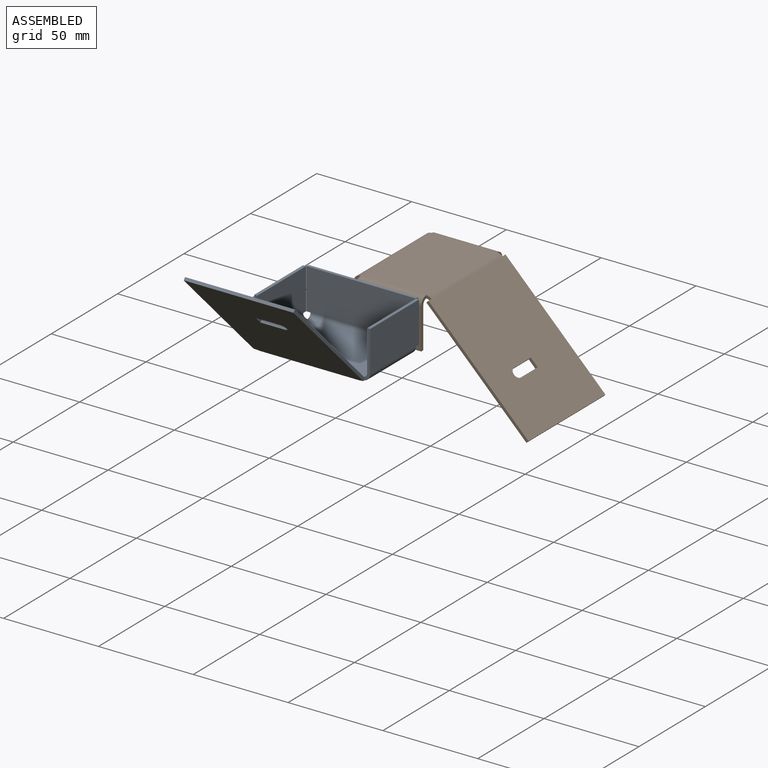
[diagram: assembled view]
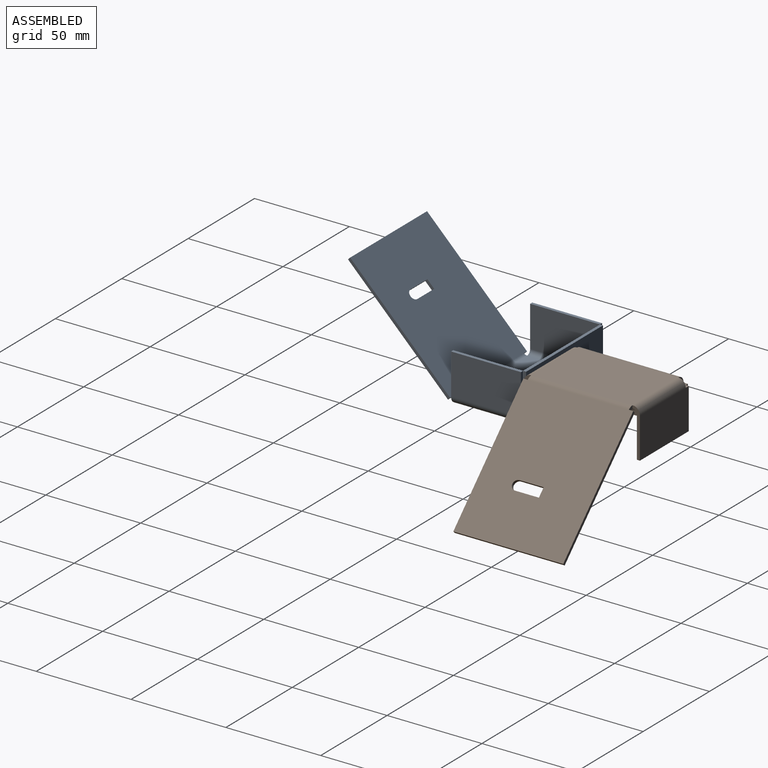
[diagram: assembled view, second angle]
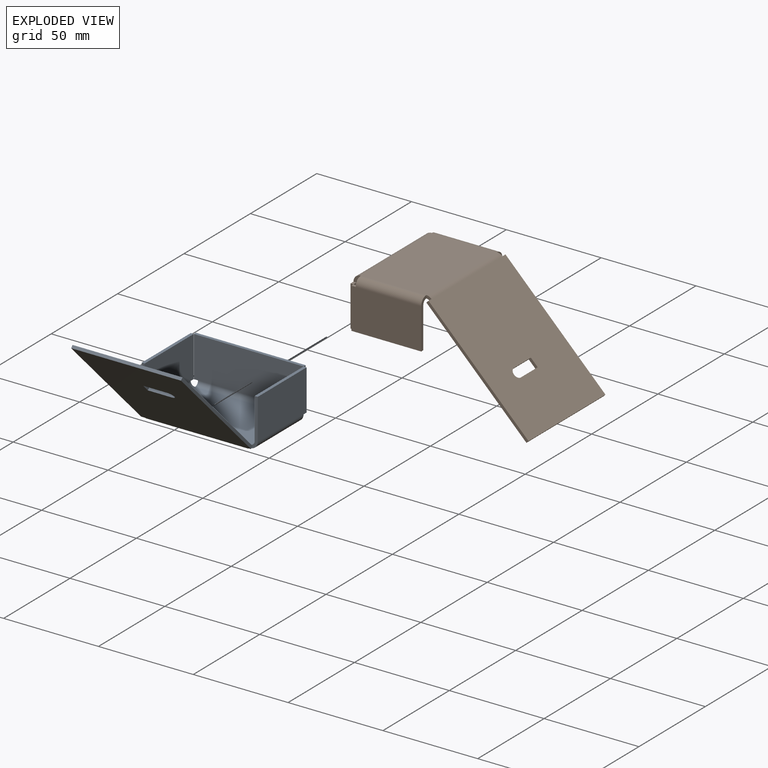
[diagram: exploded view]
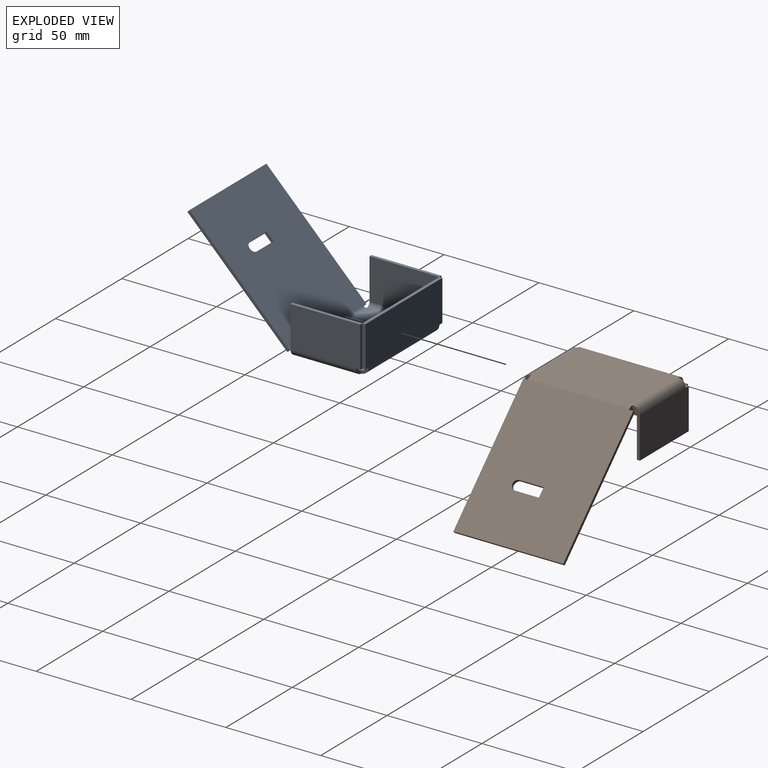
[diagram: exploded view, second angle]
ASSEMBLY  parts=2 mates=3
PART A: 48 faces, bbox 61.1x93.9x55 mm
  f0: plane 53.39x34.57mm, normal (0,0,-1), area 1845.4mm2, adj f15,f26,f36,f46
  f1: plane 53.39x34.57mm, normal (0,0,1), area 1845.4mm2, adj f16,f27,f37,f47
  f2: plane 2.29x1.12mm, normal (0,0.71,-0.71), area 3.6mm2, adj f7,f11,f12,f13
  f3: plane 12.7x1.12mm, normal (0,-0.71,0.71), area 20.2mm2, adj f4,f10,f11,f12
  f4: plane 4.71x4.71mm, normal (1,0,0), area 8.1mm2, adj f3,f5,f11,f12
  f5: plane 12.7x1.12mm, normal (0,0.71,-0.71), area 20.2mm2, adj f4,f10,f11,f12
  f6: plane 57.96x1.12mm, normal (0,-0.71,0.71), area 92mm2, adj f7,f9,f11,f12
  f7: plane 53.87x53.87mm, normal (-1,0,0), area 118.4mm2, adj f2,f6,f11,f12
  f8: plane 2.29x1.12mm, normal (0,0.71,-0.71), area 3.6mm2, adj f9,f11,f12,f14
  f9: plane 53.87x53.87mm, normal (1,0,0), area 118.4mm2, adj f6,f8,f11,f12
  f10: cylinder r=2.54mm len=4.71mm, axis (0,-0.71,-0.71), area 12.7mm2, adj f3,f5,f11,f12
  f11: plane 57.96x52.75mm, normal (0,-0.71,-0.71), area 4248.7mm2, adj f2,f3,f4,f5,f6,f7,f8,f9
  f12: plane 57.96x52.75mm, normal (0,0.71,0.71), area 4248.7mm2, adj f2,f3,f4,f5,f6,f7,f8,f9
  f13: plane 2.74x2.26mm, normal (-1,0,0), area 3.8mm2, adj f2,f15,f16,f35
  f14: plane 2.74x2.26mm, normal (1,0,0), area 3.8mm2, adj f8,f15,f16,f44
  f15: cylinder r=3.87mm len=53.39mm, axis (-1,0,0), area 162.4mm2, adj f0,f11,f13,f14
  f16: cylinder r=2.29mm len=53.39mm, axis (-1,0,0), area 95.8mm2, adj f1,f12,f13,f14
  f17: plane 2.26x1.59mm, normal (0,0,-1), area 3.6mm2, adj f18,f22,f23,f24
  f18: plane 21.53x1.59mm, normal (1,0,0), area 34.2mm2, adj f17,f21,f22,f23
  f19: plane 2.26x1.59mm, normal (0,0,-1), area 3.6mm2, adj f20,f22,f23,f25
  f20: plane 21.53x1.59mm, normal (-1,0,0), area 34.2mm2, adj f19,f21,f22,f23
  f21: plane 57.91x1.59mm, normal (0,0,1), area 91.9mm2, adj f18,f20,f22,f23
  f22: plane 57.91x21.53mm, normal (0,1,0), area 1246.5mm2, adj f17,f18,f19,f20,f21,f26
  f23: plane 57.91x21.53mm, normal (0,-1,0), area 1246.5mm2, adj f17,f18,f19,f20,f21,f27
  f24: plane 3.87x3.87mm, normal (1,0,0), area 7.7mm2, adj f17,f26,f27,f45
  f25: plane 3.87x3.87mm, normal (-1,0,0), area 7.7mm2, adj f19,f26,f27,f34
  f26: cylinder r=3.87mm len=53.39mm, axis (1,0,0), area 324.8mm2, adj f0,f22,f24,f25
  f27: cylinder r=2.29mm len=53.39mm, axis (1,0,0), area 191.7mm2, adj f1,f23,f24,f25
  f28: plane 2.26x1.59mm, normal (0,0,-1), area 3.6mm2, adj f29,f32,f33,f34
  f29: plane 21.53x1.59mm, normal (0,1,0), area 34.2mm2, adj f28,f31,f32,f33
  f30: plane 21.53x1.59mm, normal (0,-1,0), area 34.2mm2, adj f31,f32,f33,f35
  f31: plane 36.83x1.59mm, normal (0,0,1), area 58.5mm2, adj f29,f30,f32,f33
  f32: plane 36.83x21.53mm, normal (-1,0,0), area 792.8mm2, adj f28,f29,f30,f31,f36
  f33: plane 36.83x21.53mm, normal (1,0,0), area 792.8mm2, adj f28,f29,f30,f31,f37
  f34: plane 3.87x3.87mm, normal (0,1,0), area 7.7mm2, adj f25,f28,f36,f37
  f35: plane 3.87x3.87mm, normal (0,-1,0), area 7.7mm2, adj f13,f30,f36,f37
  f36: cylinder r=3.87mm len=34.57mm, axis (0,1,0), area 210.3mm2, adj f0,f32,f34,f35
  f37: cylinder r=2.29mm len=34.57mm, axis (0,1,0), area 124.1mm2, adj f1,f33,f34,f35
  f38: plane 21.53x1.59mm, normal (0,-1,0), area 34.2mm2, adj f41,f42,f43,f44
  f39: plane 2.26x1.59mm, normal (0,0,-1), area 3.6mm2, adj f40,f42,f43,f45
  f40: plane 21.53x1.59mm, normal (0,1,0), area 34.2mm2, adj f39,f41,f42,f43
  f41: plane 36.83x1.59mm, normal (0,0,1), area 58.5mm2, adj f38,f40,f42,f43
  f42: plane 36.83x21.53mm, normal (1,0,0), area 792.8mm2, adj f38,f39,f40,f41,f46
  f43: plane 36.83x21.53mm, normal (-1,0,0), area 792.8mm2, adj f38,f39,f40,f41,f47
  f44: plane 3.87x3.87mm, normal (0,-1,0), area 7.7mm2, adj f14,f38,f46,f47
  f45: plane 3.87x3.87mm, normal (0,1,0), area 7.7mm2, adj f24,f39,f46,f47
  f46: cylinder r=3.87mm len=34.57mm, axis (0,-1,0), area 210.3mm2, adj f0,f42,f44,f45
  f47: cylinder r=2.29mm len=34.57mm, axis (0,-1,0), area 124.1mm2, adj f1,f43,f44,f45
PART B: same geometry as A
PLACE A t=(-77.91,79.27,23.84)mm
PLACE B rot(axis=(-0.71,0.71,0),180deg) t=(-16.76,178.86,49.24)mm fixed
MATE planar A.f42 <-> B.f38  axis (1,0,0) through (-18.37,99.29,38.48)mm
MATE planar B.f42 <-> A.f22  axis (0,-1,0) through (-36.78,119.31,34.6)mm
MATE planar B.f41 <-> A.f0  axis (0,0,-1) through (-36.78,120.11,23.84)mm
